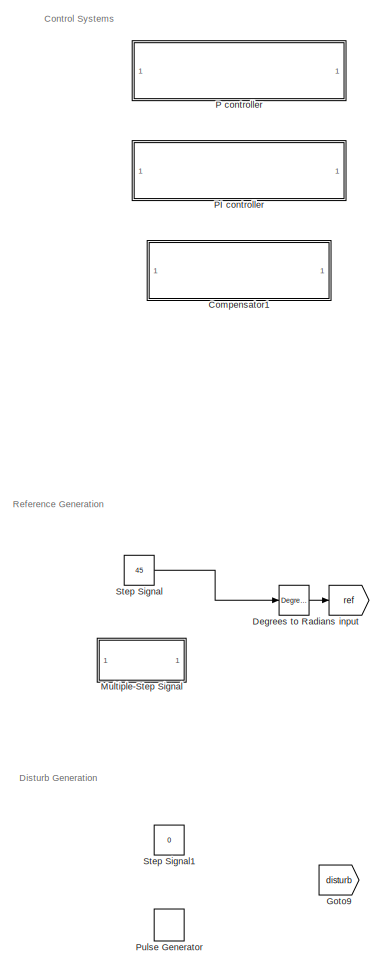
[diagram: root canvas - part 1/5, middle left region]
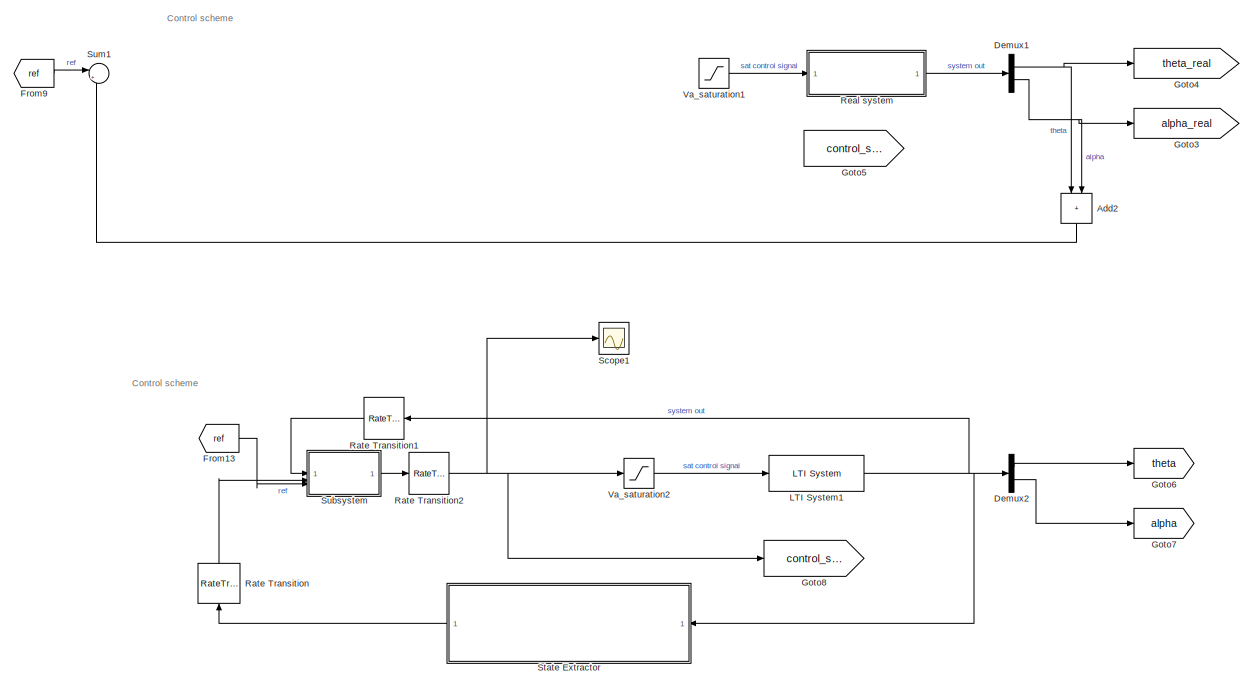
[diagram: root canvas - part 2/5, middle left region]
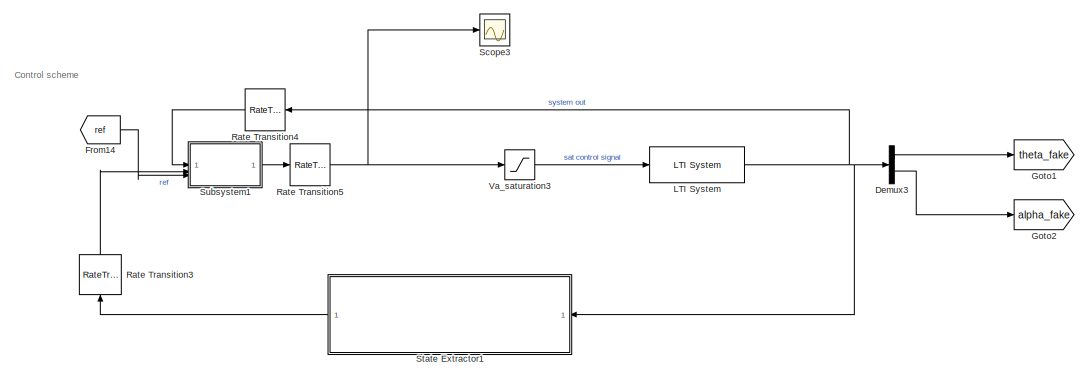
[diagram: root canvas - part 3/5, middle right region]
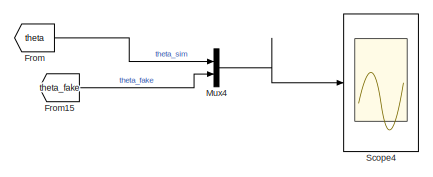
[diagram: root canvas - part 4/5, middle right region]
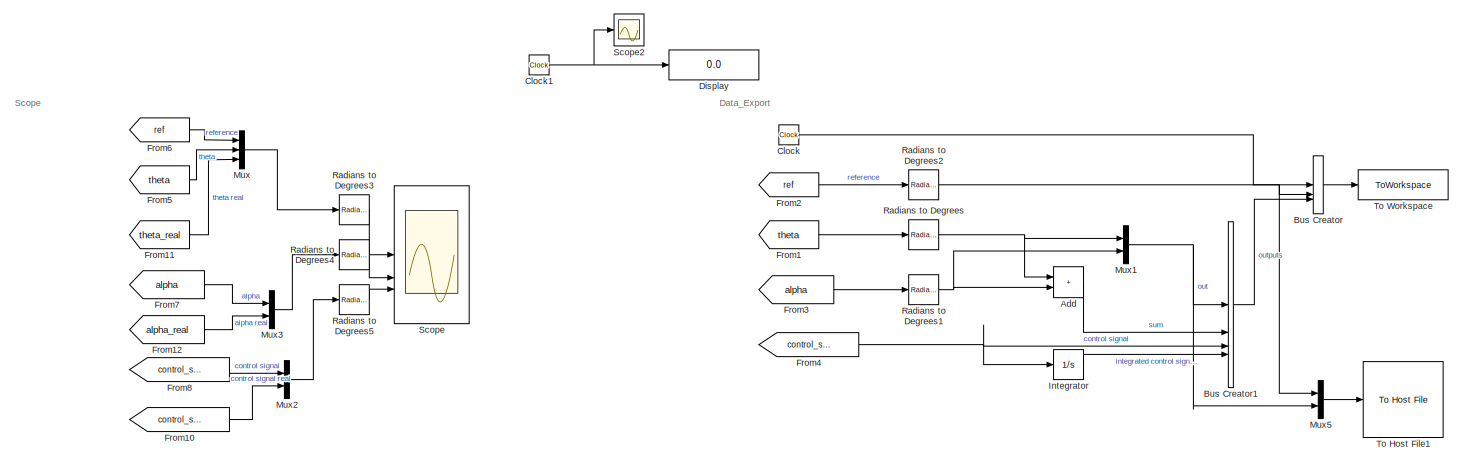
[diagram: root canvas - part 5/5, bottom left region]
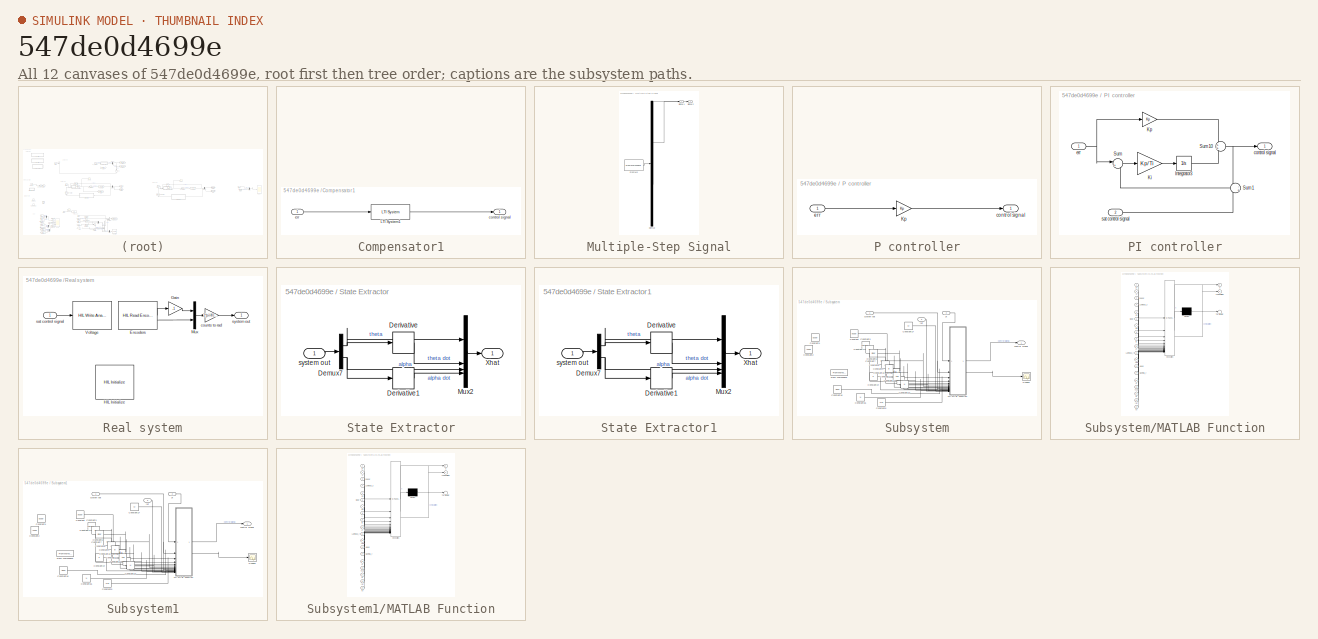
[diagram: thumbnail index - all 12 canvases of the model, root first then tree order]
MODEL slx_547de0d4699e
KIND model
CONFIG AbsTol = auto
CONFIG EnableMultiTasking = on
CONFIG FixedStep = 0.002
CONFIG MaxStep = auto
CONFIG MinStep = auto
CONFIG PostLoadFcn = qc_set_target_type(getConfigSet(bdroot, 'QUARC Default Target Configuration'));
CONFIG RelTol = 1e-3
CONFIG SampleTimeConstraint = Unconstrained
CONFIG SolverName = ode1
CONFIG StartTime = 0.0
CONFIG StopTime = inf
BLOCK [Sum] Add
  Commented = on
  IconShape = rectangular
BLOCK [Sum] Add2
  Commented = on
  IconShape = rectangular
  NameLocation = left
BLOCK [BusCreator] Bus Creator
  Commented = on
  DisplayOption = bar
  InheritFromInputs = on
  Inputs = 3
BLOCK [BusCreator] Bus Creator1
  Commented = on
  DisplayOption = bar
  InheritFromInputs = on
  Inputs = 4
BLOCK [Clock] Clock
  Commented = on
BLOCK [Clock] Clock1
BLOCK [SubSystem] Compensator1
  Commented = on
BLOCK [Reference] Compensator1/LTI System1  REF=cstblocks/LTI System
  SourceBlock = cstblocks/LTI System
  SourceType = LTI Block
BLOCK [Outport] Compensator1/control signal
BLOCK [Inport] Compensator1/err
BLOCK [Reference] Degrees to Radians  REF=simulink_extras/Transformations/Degrees to
Radians
  SourceBlock = simulink_extras/Transformations/Degrees to\nRadians
  SourceType = DegreesToRadians
BLOCK [Demux] Demux1
  Commented = on
  Outputs = 2
BLOCK [Demux] Demux2
  Outputs = 2
BLOCK [Demux] Demux3
  Outputs = 2
BLOCK [Display] Display
  Decimation = 1
BLOCK [From] From
  GotoTag = theta
BLOCK [From] From1
  Commented = on
  GotoTag = theta
BLOCK [From] From10
  GotoTag = control_signal_real
BLOCK [From] From11
  GotoTag = theta_real
BLOCK [From] From12
  GotoTag = alpha_real
BLOCK [From] From13
  GotoTag = ref
BLOCK [From] From14
  GotoTag = ref
BLOCK [From] From15
  GotoTag = theta_fake
BLOCK [From] From2
  Commented = on
  GotoTag = ref
BLOCK [From] From3
  Commented = on
  GotoTag = alpha
BLOCK [From] From4
  Commented = on
  GotoTag = control_signal
BLOCK [From] From5
  GotoTag = theta
BLOCK [From] From6
  GotoTag = ref
BLOCK [From] From7
  GotoTag = alpha
BLOCK [From] From8
  GotoTag = control_signal
BLOCK [From] From9
  Commented = on
  GotoTag = ref
BLOCK [Goto] Goto1
  GotoTag = theta_fake
BLOCK [Goto] Goto2
  GotoTag = alpha_fake
BLOCK [Goto] Goto3
  Commented = on
  GotoTag = alpha_real
BLOCK [Goto] Goto4
  Commented = on
  GotoTag = theta_real
BLOCK [Goto] Goto5
  Commented = on
  GotoTag = control_signal_real
BLOCK [Goto] Goto6
  GotoTag = theta
BLOCK [Goto] Goto7
  GotoTag = alpha
BLOCK [Goto] Goto8
  GotoTag = control_signal
BLOCK [Goto] Goto9
  GotoTag = disturb
BLOCK [Integrator] Integrator
  Commented = on
BLOCK [Reference] LTI System  REF=cstblocks/LTI System
  SourceBlock = cstblocks/LTI System
  SourceType = LTI Block
BLOCK [Reference] LTI System1  REF=cstblocks/LTI System
  SourceBlock = cstblocks/LTI System
  SourceType = LTI Block
BLOCK [SubSystem] Multiple-Step Signal
  ClipboardFcn = sigbuilder_block('clipboard');
  CloseFcn = sigbuilder_block('close');
  ContinueFcn = sigbuilder_block('continue');
  CopyFcn = sigbuilder_block('copy');
  DeleteFcn = sigbuilder_block('delete');
  LoadFcn = sigbuilder_block('load');
  MaskHideContents = on
  ModelCloseFcn = sigbuilder_block('modelClose');
  NameChangeFcn = sigbuilder_block('namechange');
  OpenFcn = sigbuilder_block('open',[6 30 1428 681.75 ]);
  PauseFcn = sigbuilder_block('pause');
  PreSaveFcn = sigbuilder_block('preSave');
  StartFcn = sigbuilder_block('start');
  StopFcn = sigbuilder_block('stop');
  Tag = STV Subsys
BLOCK [Demux] Multiple-Step Signal/Demux
  DisplayOption = none
  Outputs = 2
  Tag = STV Demux
BLOCK [FromWorkspace] Multiple-Step Signal/FromWs
  Tag = STV FromWs
  VariableName = tuvar
BLOCK [Outport] Multiple-Step Signal/Signal 1
  Tag = STV Outport
BLOCK [Outport] Multiple-Step Signal/Signal 2
  Port = 2
  Tag = STV Outport
BLOCK [Mux] Mux
  DisplayOption = bar
  Inputs = 3
BLOCK [Mux] Mux1
  Commented = on
  DisplayOption = bar
  Inputs = 2
BLOCK [Mux] Mux2
  DisplayOption = bar
  Inputs = 2
BLOCK [Mux] Mux3
  DisplayOption = bar
  Inputs = 2
BLOCK [Mux] Mux4
  DisplayOption = bar
  Inputs = 2
BLOCK [Mux] Mux5
  Commented = on
  DisplayOption = bar
  Inputs = 2
BLOCK [SubSystem] P controller
  Commented = on
BLOCK [Gain] P controller/Kp
  Gain = Kp
BLOCK [Outport] P controller/control signal
BLOCK [Inport] P controller/err
BLOCK [SubSystem] PI controller
  Commented = on
  PortSchema = {"entries":[{"content":{"sides":[{"content":{"connectorIds":["In1"]},"type":"ConnectorPlacement.EquallySpacedRectSide","uuid":"7217c107-8941-41d6-876d-785730e7c545"},{"content":{"connectorIds":["Out1","In2"],"side":"RIGHT"},"type":"ConnectorPlacement.EquallySpacedRectSide","uuid":"8f4f3268-96a8-4465-82c6-7649ba2b4d82"},{"content":{"connectorIds":[],"side":"TOP"},"type":"ConnectorPlacement.EquallyS...<+246ch>
BLOCK [Integrator] PI controller/Integrator3
BLOCK [Gain] PI controller/Ki
  Gain = Kp/Ti
BLOCK [Gain] PI controller/Kp
  Gain = Kp
BLOCK [Sum] PI controller/Sum
  Inputs = |++
BLOCK [Sum] PI controller/Sum1
  Inputs = -+
  NameLocation = top
BLOCK [Sum] PI controller/Sum10
BLOCK [Outport] PI controller/control signal
BLOCK [Inport] PI controller/err
BLOCK [Inport] PI controller/sat control signal
  Port = 2
BLOCK [DiscretePulseGenerator] Pulse Generator
  Period = 10
  PulseType = Time based
  PulseWidth = 5
BLOCK [Reference] Radians to Degrees  REF=simulink_extras/Transformations/Radians
to Degrees
  Commented = on
  SourceBlock = simulink_extras/Transformations/Radians\nto Degrees
  SourceType = RadiansToDegrees
BLOCK [Reference] Radians to Degrees1  REF=simulink_extras/Transformations/Radians
to Degrees
  Commented = on
  SourceBlock = simulink_extras/Transformations/Radians\nto Degrees
  SourceType = RadiansToDegrees
BLOCK [Reference] Radians to Degrees2  REF=simulink_extras/Transformations/Radians
to Degrees
  Commented = on
  SourceBlock = simulink_extras/Transformations/Radians\nto Degrees
  SourceType = RadiansToDegrees
BLOCK [Reference] Radians to Degrees3  REF=simulink_extras/Transformations/Radians
to Degrees
  SourceBlock = simulink_extras/Transformations/Radians\nto Degrees
  SourceType = RadiansToDegrees
BLOCK [Reference] Radians to Degrees4  REF=simulink_extras/Transformations/Radians
to Degrees
  SourceBlock = simulink_extras/Transformations/Radians\nto Degrees
  SourceType = RadiansToDegrees
BLOCK [Reference] Radians to Degrees5  REF=simulink_extras/Transformations/Radians
to Degrees
  SourceBlock = simulink_extras/Transformations/Radians\nto Degrees
  SourceType = RadiansToDegrees
BLOCK [RateTransition] Rate Transition
  NameLocation = left
  OutPortSampleTime = Ts
BLOCK [RateTransition] Rate Transition1
  OutPortSampleTime = Ts
BLOCK [RateTransition] Rate Transition2
  NameLocation = top
  OutPortSampleTime = 0.002
BLOCK [RateTransition] Rate Transition3
  NameLocation = left
  OutPortSampleTime = Ts
BLOCK [RateTransition] Rate Transition4
  OutPortSampleTime = Ts
BLOCK [RateTransition] Rate Transition5
  NameLocation = top
  OutPortSampleTime = 0.002
BLOCK [SubSystem] Real system
  Commented = on
BLOCK [Reference] Real system/Encoders  REF=quarc_library/Data Acquisition/Generic/Timebases/HIL Read Encoder
Timebase
  AttributesFormatString = (%<object_name>)
  SourceBlock = quarc_library/Data Acquisition/Generic/Timebases/HIL Read Encoder\nTimebase
  SourceType = HIL Read Encoder Timebase
  UserDataPersistent = on
BLOCK [Gain] Real system/Gain
  Gain = -1
BLOCK [Reference] Real system/HIL Initialize  REF=quarc_library/Data Acquisition/Generic/Configuration/HIL Initialize
  AttributesFormatString = %<object_name> (%<board_type>-%<board_number>)
  Priority = -99
  SourceBlock = quarc_library/Data Acquisition/Generic/Configuration/HIL Initialize
  SourceType = HIL Initialize
  UserDataPersistent = on
BLOCK [Mux] Real system/Mux
  DisplayOption = bar
  Inputs = 2
BLOCK [Reference] Real system/Voltage  REF=quarc_library/Data Acquisition/Generic/Immediate I//O/HIL Write Analog
  AttributesFormatString = (%<object_name>)
  SourceBlock = quarc_library/Data Acquisition/Generic/Immediate I//O/HIL Write Analog
  SourceType = HIL Write Analog
  UserDataPersistent = on
BLOCK [Gain] Real system/counts to rad
  Gain = 2*pi/4096
BLOCK [Inport] Real system/sat control signal
BLOCK [Outport] Real system/system out
BLOCK [Scope] Scope
  Floating = off
  NumInputPorts = 3
  ScopeSpecificationString = Simulink.scopes.TimeScopeBlockCfg('CurrentConfiguration', extmgr.ConfigurationSet(extmgr.Configuration('Core','General UI',true,'FigureColor',[1 1 1]),extmgr.Configuration('Core','Source UI',true),extmgr.Configuration('Sources','WiredSimulink',true),extmgr.Configuration('Visuals','Time Domain',true,'SerializedDisplays',{struct('MinYLimReal','-5.88353','MaxYLimReal','52.9518','YLabelReal','','MinYL...<+3579ch>
BLOCK [Scope] Scope1
  Floating = off
  NumInputPorts = 1
  ScopeSpecificationString = Simulink.scopes.TimeScopeBlockCfg('CurrentConfiguration', extmgr.ConfigurationSet(extmgr.Configuration('Core','General UI',true),extmgr.Configuration('Core','Source UI',true),extmgr.Configuration('Sources','WiredSimulink',true,'DataLoggingVariableName','ScopeData1'),extmgr.Configuration('Visuals','Time Domain',true,'SerializedDisplays',{struct('MinYLimReal','-0.72567','MaxYLimReal','5.63619','YLab...<+1443ch>
BLOCK [Scope] Scope2
  Floating = off
  NumInputPorts = 1
  ScopeSpecificationString = Simulink.scopes.TimeScopeBlockCfg('CurrentConfiguration', extmgr.ConfigurationSet(extmgr.Configuration('Core','General UI',true),extmgr.Configuration('Core','Source UI',true),extmgr.Configuration('Sources','WiredSimulink',true,'DataLoggingVariableName','ScopeData2'),extmgr.Configuration('Visuals','Time Domain',true,'SerializedDisplays',{struct('MinYLimReal','-0.25','MaxYLimReal','2.25','YLabelReal...<+1415ch>
BLOCK [Scope] Scope3
  Floating = off
  NumInputPorts = 1
  ScopeSpecificationString = Simulink.scopes.TimeScopeBlockCfg('CurrentConfiguration', extmgr.ConfigurationSet(extmgr.Configuration('Core','General UI',true),extmgr.Configuration('Core','Source UI',true),extmgr.Configuration('Sources','WiredSimulink',true,'DataLoggingVariableName','ScopeData2'),extmgr.Configuration('Visuals','Time Domain',true,'SerializedDisplays',{struct('MinYLimReal','-0.71411','MaxYLimReal','5.6349','YLabe...<+1439ch>
BLOCK [Scope] Scope4
  Floating = off
  NumInputPorts = 3
  ScopeSpecificationString = Simulink.scopes.TimeScopeBlockCfg('CurrentConfiguration', extmgr.ConfigurationSet(extmgr.Configuration('Core','General UI',true,'FigureColor',[1 1 1]),extmgr.Configuration('Core','Source UI',true),extmgr.Configuration('Sources','WiredSimulink',true,'DataLoggingVariableName','ScopeData3'),extmgr.Configuration('Visuals','Time Domain',true,'SerializedDisplays',{struct('MinYLimReal','-0.10418','MaxYLi...<+3494ch>
BLOCK [SubSystem] State Extractor
BLOCK [Demux] State Extractor/Demux7
  Outputs = 2
BLOCK [Derivative] State Extractor/Derivative
BLOCK [Derivative] State Extractor/Derivative1
BLOCK [Mux] State Extractor/Mux2
  DisplayOption = bar
BLOCK [Outport] State Extractor/Xhat
BLOCK [Inport] State Extractor/system out
BLOCK [SubSystem] State Extractor1
BLOCK [Demux] State Extractor1/Demux7
  Outputs = 2
BLOCK [Derivative] State Extractor1/Derivative
BLOCK [Derivative] State Extractor1/Derivative1
BLOCK [Mux] State Extractor1/Mux2
  DisplayOption = bar
BLOCK [Outport] State Extractor1/Xhat
BLOCK [Inport] State Extractor1/system out
BLOCK [Constant] Step Signal
  Value = 45
BLOCK [Constant] Step Signal1
  Value = 0
BLOCK [SubSystem] Subsystem
BLOCK [Constant] Subsystem/Constant
  Value = bubar
BLOCK [Constant] Subsystem/Constant1
  Commented = on
  Value = bzbar
BLOCK [Constant] Subsystem/Constant10
  Value = Lambda_y
BLOCK [Constant] Subsystem/Constant11
  Value = Gamma_y
BLOCK [Constant] Subsystem/Constant12
  Value = Aeq
BLOCK [Constant] Subsystem/Constant13
  Value = H
BLOCK [Constant] Subsystem/Constant14
  Value = C
BLOCK [Constant] Subsystem/Constant15
  Value = N
BLOCK [Constant] Subsystem/Constant16
  Value = Aineq
BLOCK [Constant] Subsystem/Constant17
  Value = ny
BLOCK [Constant] Subsystem/Constant2
  Commented = on
  Value = Azbar
BLOCK [Constant] Subsystem/Constant3
  Value = Lambda_z
BLOCK [Constant] Subsystem/Constant4
  Value = nz
BLOCK [Constant] Subsystem/Constant5
  Value = Qbar
BLOCK [Constant] Subsystem/Constant6
  Value = Yref
BLOCK [Constant] Subsystem/Constant7
  Value = nu
BLOCK [Constant] Subsystem/Constant8
  Value = A
BLOCK [Constant] Subsystem/Constant9
  Value = B
BLOCK [FromWorkspace] Subsystem/From Workspace
  Commented = on
  VariableName = options
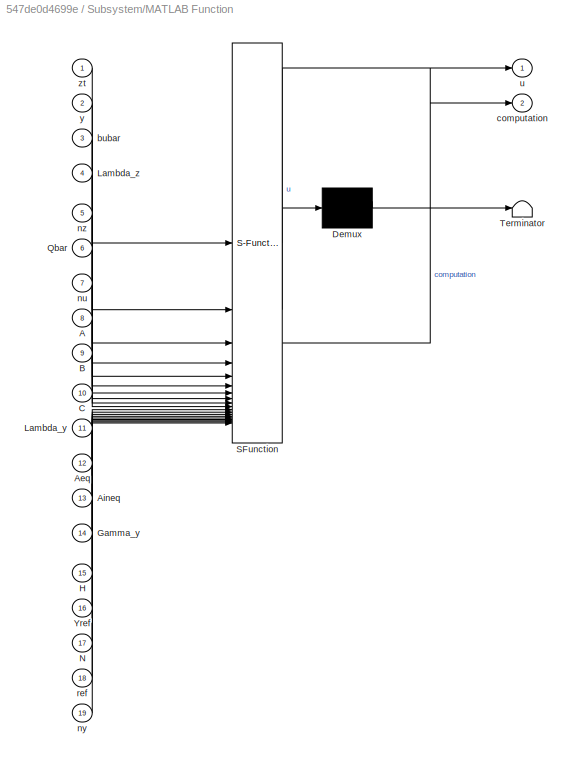
BLOCK [SubSystem] Subsystem/MATLAB Function
  ErrorFcn = Stateflow.Translate.translate
  LibrarySourceBlock = simulink/User-Defined\nFunctions/MATLAB Function
  PermitHierarchicalResolution = ExplicitOnly
  SFBlockType = MATLAB Function
  TreatAsAtomicUnit = on
BLOCK [Demux] Subsystem/MATLAB Function/ Demux 
  Outputs = 1
BLOCK [S-Function] Subsystem/MATLAB Function/ SFunction 
  EnableBusSupport = on
  FunctionName = sf_sfun
  PortCounts = [19 3]
  SFcnIsStateOwnerBlock = off
  SFunctionDeploymentMode = off
  Tag = Stateflow S-Function 2
BLOCK [Terminator] Subsystem/MATLAB Function/ Terminator 
BLOCK [Inport] Subsystem/MATLAB Function/A
  Port = 8
BLOCK [Inport] Subsystem/MATLAB Function/Aeq
  Port = 12
BLOCK [Inport] Subsystem/MATLAB Function/Aineq
  Port = 13
BLOCK [Inport] Subsystem/MATLAB Function/B
  Port = 9
BLOCK [Inport] Subsystem/MATLAB Function/C
  Port = 10
BLOCK [Inport] Subsystem/MATLAB Function/Gamma_y
  Port = 14
BLOCK [Inport] Subsystem/MATLAB Function/H
  Port = 15
BLOCK [Inport] Subsystem/MATLAB Function/Lambda_y
  Port = 11
BLOCK [Inport] Subsystem/MATLAB Function/Lambda_z
  Port = 4
BLOCK [Inport] Subsystem/MATLAB Function/N
  Port = 17
BLOCK [Inport] Subsystem/MATLAB Function/Qbar
  Port = 6
BLOCK [Inport] Subsystem/MATLAB Function/Yref
  Port = 16
BLOCK [Inport] Subsystem/MATLAB Function/bubar
  Port = 3
BLOCK [Outport] Subsystem/MATLAB Function/computation
  Port = 2
BLOCK [Inport] Subsystem/MATLAB Function/nu
  Port = 7
BLOCK [Inport] Subsystem/MATLAB Function/ny
  Port = 19
BLOCK [Inport] Subsystem/MATLAB Function/nz
  Port = 5
BLOCK [Inport] Subsystem/MATLAB Function/ref
  Port = 18
BLOCK [Outport] Subsystem/MATLAB Function/u
BLOCK [Inport] Subsystem/MATLAB Function/y
  Port = 2
BLOCK [Inport] Subsystem/MATLAB Function/zt
BLOCK [Scope] Subsystem/Scope1
  Floating = off
  NumInputPorts = 1
  ScopeSpecificationString = Simulink.scopes.TimeScopeBlockCfg('CurrentConfiguration', extmgr.ConfigurationSet(extmgr.Configuration('Core','General UI',true),extmgr.Configuration('Core','Source UI',true),extmgr.Configuration('Sources','WiredSimulink',true,'DataLoggingVariableName','ScopeData1'),extmgr.Configuration('Visuals','Time Domain',true,'SerializedDisplays',{struct('MinYLimReal','0.00141','MaxYLimReal','0.00658','YLabe...<+1491ch>
BLOCK [Outport] Subsystem/control signal
BLOCK [Inport] Subsystem/ref
  Port = 3
BLOCK [Inport] Subsystem/system out
BLOCK [Inport] Subsystem/zt
  Port = 2
BLOCK [SubSystem] Subsystem1
BLOCK [Constant] Subsystem1/Constant
  Value = bubar
BLOCK [Constant] Subsystem1/Constant1
  Commented = on
  Value = bzbar
BLOCK [Constant] Subsystem1/Constant10
  Value = Lambda_y
BLOCK [Constant] Subsystem1/Constant11
  Value = Gamma_y
BLOCK [Constant] Subsystem1/Constant12
  Value = Aeq
BLOCK [Constant] Subsystem1/Constant13
  Value = H
BLOCK [Constant] Subsystem1/Constant14
  Value = C
BLOCK [Constant] Subsystem1/Constant15
  Value = N
BLOCK [Constant] Subsystem1/Constant16
  Value = Aineq
BLOCK [Constant] Subsystem1/Constant17
  Value = ny
BLOCK [Constant] Subsystem1/Constant2
  Commented = on
  Value = Azbar
BLOCK [Constant] Subsystem1/Constant3
  Value = Lambda_z
BLOCK [Constant] Subsystem1/Constant4
  Value = nz
BLOCK [Constant] Subsystem1/Constant5
  Value = Qbar
BLOCK [Constant] Subsystem1/Constant6
  Value = Yref
BLOCK [Constant] Subsystem1/Constant7
  Value = nu
BLOCK [Constant] Subsystem1/Constant8
  Value = A
BLOCK [Constant] Subsystem1/Constant9
  Value = B
BLOCK [FromWorkspace] Subsystem1/From Workspace
  Commented = on
  VariableName = options
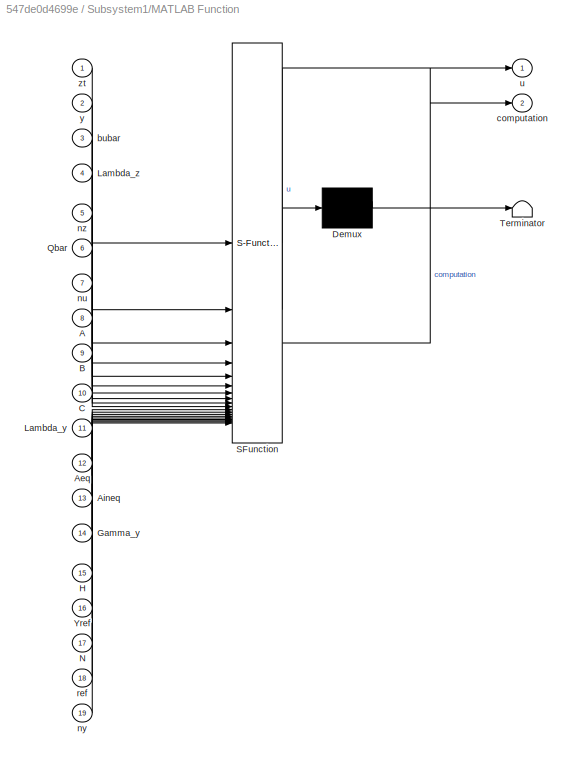
BLOCK [SubSystem] Subsystem1/MATLAB Function
  ErrorFcn = Stateflow.Translate.translate
  LibrarySourceBlock = simulink/User-Defined\nFunctions/MATLAB Function
  PermitHierarchicalResolution = ExplicitOnly
  SFBlockType = MATLAB Function
  TreatAsAtomicUnit = on
BLOCK [Demux] Subsystem1/MATLAB Function/ Demux 
  Outputs = 1
BLOCK [S-Function] Subsystem1/MATLAB Function/ SFunction 
  EnableBusSupport = on
  FunctionName = sf_sfun
  PortCounts = [19 3]
  SFcnIsStateOwnerBlock = off
  SFunctionDeploymentMode = off
  Tag = Stateflow S-Function 1
BLOCK [Terminator] Subsystem1/MATLAB Function/ Terminator 
BLOCK [Inport] Subsystem1/MATLAB Function/A
  Port = 8
BLOCK [Inport] Subsystem1/MATLAB Function/Aeq
  Port = 12
BLOCK [Inport] Subsystem1/MATLAB Function/Aineq
  Port = 13
BLOCK [Inport] Subsystem1/MATLAB Function/B
  Port = 9
BLOCK [Inport] Subsystem1/MATLAB Function/C
  Port = 10
BLOCK [Inport] Subsystem1/MATLAB Function/Gamma_y
  Port = 14
BLOCK [Inport] Subsystem1/MATLAB Function/H
  Port = 15
BLOCK [Inport] Subsystem1/MATLAB Function/Lambda_y
  Port = 11
BLOCK [Inport] Subsystem1/MATLAB Function/Lambda_z
  Port = 4
BLOCK [Inport] Subsystem1/MATLAB Function/N
  Port = 17
BLOCK [Inport] Subsystem1/MATLAB Function/Qbar
  Port = 6
BLOCK [Inport] Subsystem1/MATLAB Function/Yref
  Port = 16
BLOCK [Inport] Subsystem1/MATLAB Function/bubar
  Port = 3
BLOCK [Outport] Subsystem1/MATLAB Function/computation
  Port = 2
BLOCK [Inport] Subsystem1/MATLAB Function/nu
  Port = 7
BLOCK [Inport] Subsystem1/MATLAB Function/ny
  Port = 19
BLOCK [Inport] Subsystem1/MATLAB Function/nz
  Port = 5
BLOCK [Inport] Subsystem1/MATLAB Function/ref
  Port = 18
BLOCK [Outport] Subsystem1/MATLAB Function/u
BLOCK [Inport] Subsystem1/MATLAB Function/y
  Port = 2
BLOCK [Inport] Subsystem1/MATLAB Function/zt
BLOCK [Scope] Subsystem1/Scope1
  Floating = off
  NumInputPorts = 1
  ScopeSpecificationString = Simulink.scopes.TimeScopeBlockCfg('CurrentConfiguration', extmgr.ConfigurationSet(extmgr.Configuration('Core','General UI',true),extmgr.Configuration('Core','Source UI',true),extmgr.Configuration('Sources','WiredSimulink',true,'DataLoggingVariableName','ScopeData1'),extmgr.Configuration('Visuals','Time Domain',true,'SerializedDisplays',{struct('MinYLimReal','0.00142','MaxYLimReal','0.00645','YLabe...<+1491ch>
BLOCK [Outport] Subsystem1/control signal
BLOCK [Inport] Subsystem1/ref
  Port = 3
BLOCK [Inport] Subsystem1/system out
BLOCK [Inport] Subsystem1/zt
  Port = 2
BLOCK [Sum] Sum1
  Commented = on
  Inputs = |+-
BLOCK [Reference] To Host File1  REF=quarc_library/Sinks/To Host/To Host File
  AttributesFormatString = %<final_file_name>
  Commented = on
  SourceBlock = quarc_library/Sinks/To Host/To Host File
  SourceType = To Host File
BLOCK [ToWorkspace] To Workspace
  Commented = on
  FixptAsFi = on
  MaxDataPoints = inf
  SampleTime = -1
  VariableName = data
BLOCK [Saturate] Va_saturation1
  Commented = on
  LowerLimit = -v_a_max
  UpperLimit = v_a_max
BLOCK [Saturate] Va_saturation2
  LowerLimit = -v_a_max
  UpperLimit = v_a_max
BLOCK [Saturate] Va_saturation3
  LowerLimit = -v_a_max
  UpperLimit = v_a_max
BLOCK [Goto] input
  GotoTag = ref
ANNOTATION (root): Control Systems
ANNOTATION (root): Control scheme
ANNOTATION (root): Data_Export
ANNOTATION (root): Disturb Generation
ANNOTATION (root): Reference Generation
ANNOTATION (root): Scope
LINE Add2:1 -> Sum1:2
LINE Add:1 -> Bus Creator1:2
LINE Bus Creator1:1 -> Bus Creator:3
LINE Bus Creator:1 -> To Workspace:1
NET Clock1:1 -> Display:1, Scope2:1
LINE Clock:1 -> Bus Creator:1
LINE Compensator1/LTI System1:1 -> Compensator1/control signal:1
LINE Compensator1/err:1 -> Compensator1/LTI System1:1
LINE Degrees to Radians:1 -> input:1
NET Demux1:1 -> Add2:1, Goto4:1
NET Demux1:2 -> Add2:2, Goto3:1
LINE Demux2:1 -> Goto6:1
LINE Demux2:2 -> Goto7:1
LINE Demux3:1 -> Goto1:1
LINE Demux3:2 -> Goto2:1
LINE From10:1 -> Mux2:2
LINE From11:1 -> Mux:3
LINE From12:1 -> Mux3:2
LINE From13:1 -> Subsystem:3
LINE From14:1 -> Subsystem1:3
LINE From15:1 -> Mux4:2
LINE From1:1 -> Radians to Degrees:1
LINE From2:1 -> Radians to Degrees2:1
LINE From3:1 -> Radians to Degrees1:1
NET From4:1 -> Bus Creator1:3, Integrator:1
LINE From5:1 -> Mux:2
LINE From6:1 -> Mux:1
LINE From7:1 -> Mux3:1
LINE From8:1 -> Mux2:1
LINE From9:1 -> Sum1:1
LINE From:1 -> Mux4:1
LINE Integrator:1 -> Bus Creator1:4
NET LTI System1:1 -> Demux2:1, Rate Transition1:1, State Extractor:1
NET LTI System:1 -> Demux3:1, Rate Transition4:1, State Extractor1:1
NET Mux1:1 -> Bus Creator1:1, Mux5:2
LINE Mux2:1 -> Radians to Degrees5:1
LINE Mux3:1 -> Radians to Degrees4:1
LINE Mux4:1 -> Scope4:1
LINE Mux5:1 -> To Host File1:1
LINE Mux:1 -> Radians to Degrees3:1
LINE P controller/Kp:1 -> P controller/control signal:1
LINE P controller/err:1 -> P controller/Kp:1
LINE PI controller/Integrator3:1 -> PI controller/Sum10:2
LINE PI controller/Ki:1 -> PI controller/Integrator3:1
LINE PI controller/Kp:1 -> PI controller/Sum10:1
NET PI controller/Sum10:1 -> PI controller/Sum1:1, PI controller/control signal:1
LINE PI controller/Sum1:1 -> PI controller/Sum:2
LINE PI controller/Sum:1 -> PI controller/Ki:1
NET PI controller/err:1 -> PI controller/Kp:1, PI controller/Sum:1
LINE PI controller/sat control signal:1 -> PI controller/Sum1:2
NET Radians to Degrees1:1 -> Add:2, Mux1:2
NET Radians to Degrees2:1 -> Bus Creator:2, Mux5:1
LINE Radians to Degrees3:1 -> Scope:1
LINE Radians to Degrees4:1 -> Scope:2
LINE Radians to Degrees5:1 -> Scope:3
NET Radians to Degrees:1 -> Add:1, Mux1:1
LINE Rate Transition1:1 -> Subsystem:1
NET Rate Transition2:1 -> Goto8:1, Scope1:1, Va_saturation2:1
LINE Rate Transition3:1 -> Subsystem1:2
LINE Rate Transition4:1 -> Subsystem1:1
NET Rate Transition5:1 -> Scope3:1, Va_saturation3:1
LINE Rate Transition:1 -> Subsystem:2
LINE Real system/Encoders:1 -> Real system/Gain:1
LINE Real system/Encoders:2 -> Real system/Mux:2
LINE Real system/Gain:1 -> Real system/Mux:1
LINE Real system/Mux:1 -> Real system/counts to rad:1
LINE Real system/counts to rad:1 -> Real system/system out:1
LINE Real system/sat control signal:1 -> Real system/Voltage:1
LINE Real system:1 -> Demux1:1
NET State Extractor/Demux7:1 -> State Extractor/Derivative:1, State Extractor/Mux2:1
NET State Extractor/Demux7:2 -> State Extractor/Derivative1:1, State Extractor/Mux2:3
LINE State Extractor/Derivative1:1 -> State Extractor/Mux2:4
LINE State Extractor/Derivative:1 -> State Extractor/Mux2:2
LINE State Extractor/Mux2:1 -> State Extractor/Xhat:1
LINE State Extractor/system out:1 -> State Extractor/Demux7:1
NET State Extractor1/Demux7:1 -> State Extractor1/Derivative:1, State Extractor1/Mux2:1
NET State Extractor1/Demux7:2 -> State Extractor1/Derivative1:1, State Extractor1/Mux2:3
LINE State Extractor1/Derivative1:1 -> State Extractor1/Mux2:4
LINE State Extractor1/Derivative:1 -> State Extractor1/Mux2:2
LINE State Extractor1/Mux2:1 -> State Extractor1/Xhat:1
LINE State Extractor1/system out:1 -> State Extractor1/Demux7:1
LINE State Extractor1:1 -> Rate Transition3:1
LINE State Extractor:1 -> Rate Transition:1
LINE Step Signal:1 -> Degrees to Radians:1
LINE Subsystem/Constant10:1 -> Subsystem/MATLAB Function:11
LINE Subsystem/Constant11:1 -> Subsystem/MATLAB Function:14
LINE Subsystem/Constant12:1 -> Subsystem/MATLAB Function:12
LINE Subsystem/Constant13:1 -> Subsystem/MATLAB Function:15
LINE Subsystem/Constant14:1 -> Subsystem/MATLAB Function:10
LINE Subsystem/Constant15:1 -> Subsystem/MATLAB Function:17
LINE Subsystem/Constant16:1 -> Subsystem/MATLAB Function:13
LINE Subsystem/Constant17:1 -> Subsystem/MATLAB Function:19
LINE Subsystem/Constant3:1 -> Subsystem/MATLAB Function:4
LINE Subsystem/Constant4:1 -> Subsystem/MATLAB Function:5
LINE Subsystem/Constant5:1 -> Subsystem/MATLAB Function:6
LINE Subsystem/Constant6:1 -> Subsystem/MATLAB Function:16
LINE Subsystem/Constant7:1 -> Subsystem/MATLAB Function:7
LINE Subsystem/Constant8:1 -> Subsystem/MATLAB Function:8
LINE Subsystem/Constant9:1 -> Subsystem/MATLAB Function:9
LINE Subsystem/Constant:1 -> Subsystem/MATLAB Function:3
LINE Subsystem/MATLAB Function:1 -> Subsystem/control signal:1
LINE Subsystem/MATLAB Function:2 -> Subsystem/Scope1:1
LINE Subsystem/ref:1 -> Subsystem/MATLAB Function:18
LINE Subsystem/system out:1 -> Subsystem/MATLAB Function:2
LINE Subsystem/zt:1 -> Subsystem/MATLAB Function:1
LINE Subsystem1/Constant10:1 -> Subsystem1/MATLAB Function:11
LINE Subsystem1/Constant11:1 -> Subsystem1/MATLAB Function:14
LINE Subsystem1/Constant12:1 -> Subsystem1/MATLAB Function:12
LINE Subsystem1/Constant13:1 -> Subsystem1/MATLAB Function:15
LINE Subsystem1/Constant14:1 -> Subsystem1/MATLAB Function:10
LINE Subsystem1/Constant15:1 -> Subsystem1/MATLAB Function:17
LINE Subsystem1/Constant16:1 -> Subsystem1/MATLAB Function:13
LINE Subsystem1/Constant17:1 -> Subsystem1/MATLAB Function:19
LINE Subsystem1/Constant3:1 -> Subsystem1/MATLAB Function:4
LINE Subsystem1/Constant4:1 -> Subsystem1/MATLAB Function:5
LINE Subsystem1/Constant5:1 -> Subsystem1/MATLAB Function:6
LINE Subsystem1/Constant6:1 -> Subsystem1/MATLAB Function:16
LINE Subsystem1/Constant7:1 -> Subsystem1/MATLAB Function:7
LINE Subsystem1/Constant8:1 -> Subsystem1/MATLAB Function:8
LINE Subsystem1/Constant9:1 -> Subsystem1/MATLAB Function:9
LINE Subsystem1/Constant:1 -> Subsystem1/MATLAB Function:3
LINE Subsystem1/MATLAB Function:1 -> Subsystem1/control signal:1
LINE Subsystem1/MATLAB Function:2 -> Subsystem1/Scope1:1
LINE Subsystem1/ref:1 -> Subsystem1/MATLAB Function:18
LINE Subsystem1/system out:1 -> Subsystem1/MATLAB Function:2
LINE Subsystem1/zt:1 -> Subsystem1/MATLAB Function:1
LINE Subsystem1:1 -> Rate Transition5:1
LINE Subsystem:1 -> Rate Transition2:1
LINE Va_saturation1:1 -> Real system:1
LINE Va_saturation2:1 -> LTI System1:1
LINE Va_saturation3:1 -> LTI System:1
note: NET lines group one-source signal fan-out (src -> all destinations, sorted); 1:1 wires keep LINE
CHART Subsystem1/MATLAB Function states=1 transitions=1
  STATE_LABEL 'eML_blk_kernel()'
  STATE_LABEL 'SCRIPT:\nfunction [u,computation]  = fcn(zt, y, bubar, Lambda_z, nz, Qbar, nu, A, B,C, Lambda_y ,Aeq,Aineq, Gamma_y , H,Yref, N,  ref,ny)\n%function [u , zt]   = fcn(zt, y, bubar, bzbar, Azbar, Lambda_z, nz, Qbar,  options, nu, A, B, Lambda_y ,Aeq, Gamma_y , H )\ntic\n\nYref                                    =   zeros((N+1)*ny,1);\nyref    =   [ref;  0];\n\nfor ind = 1:N+1\n    Yref((ind-1)*ny+1:ind*ny,1)...<+686ch>'
CHART Subsystem/MATLAB Function states=1 transitions=1
  STATE_LABEL 'eML_blk_kernel()'
  STATE_LABEL 'SCRIPT:\nfunction [u,computation]  = fcn(zt, y, bubar, Lambda_z, nz, Qbar, nu, A, B,C, Lambda_y ,Aeq,Aineq, Gamma_y , H,Yref, N,  ref,ny)\n%function [u , zt]   = fcn(zt, y, bubar, bzbar, Azbar, Lambda_z, nz, Qbar,  options, nu, A, B, Lambda_y ,Aeq, Gamma_y , H )\ntic\n\nYref                                    =   zeros((N+1)*ny,1);\nyref    =   [ref;  0];\n\nfor ind = 1:N+1\n    Yref((ind-1)*ny+1:ind*ny,1)...<+686ch>'
CHART  states=0 transitions=0
CHART  states=0 transitions=0
